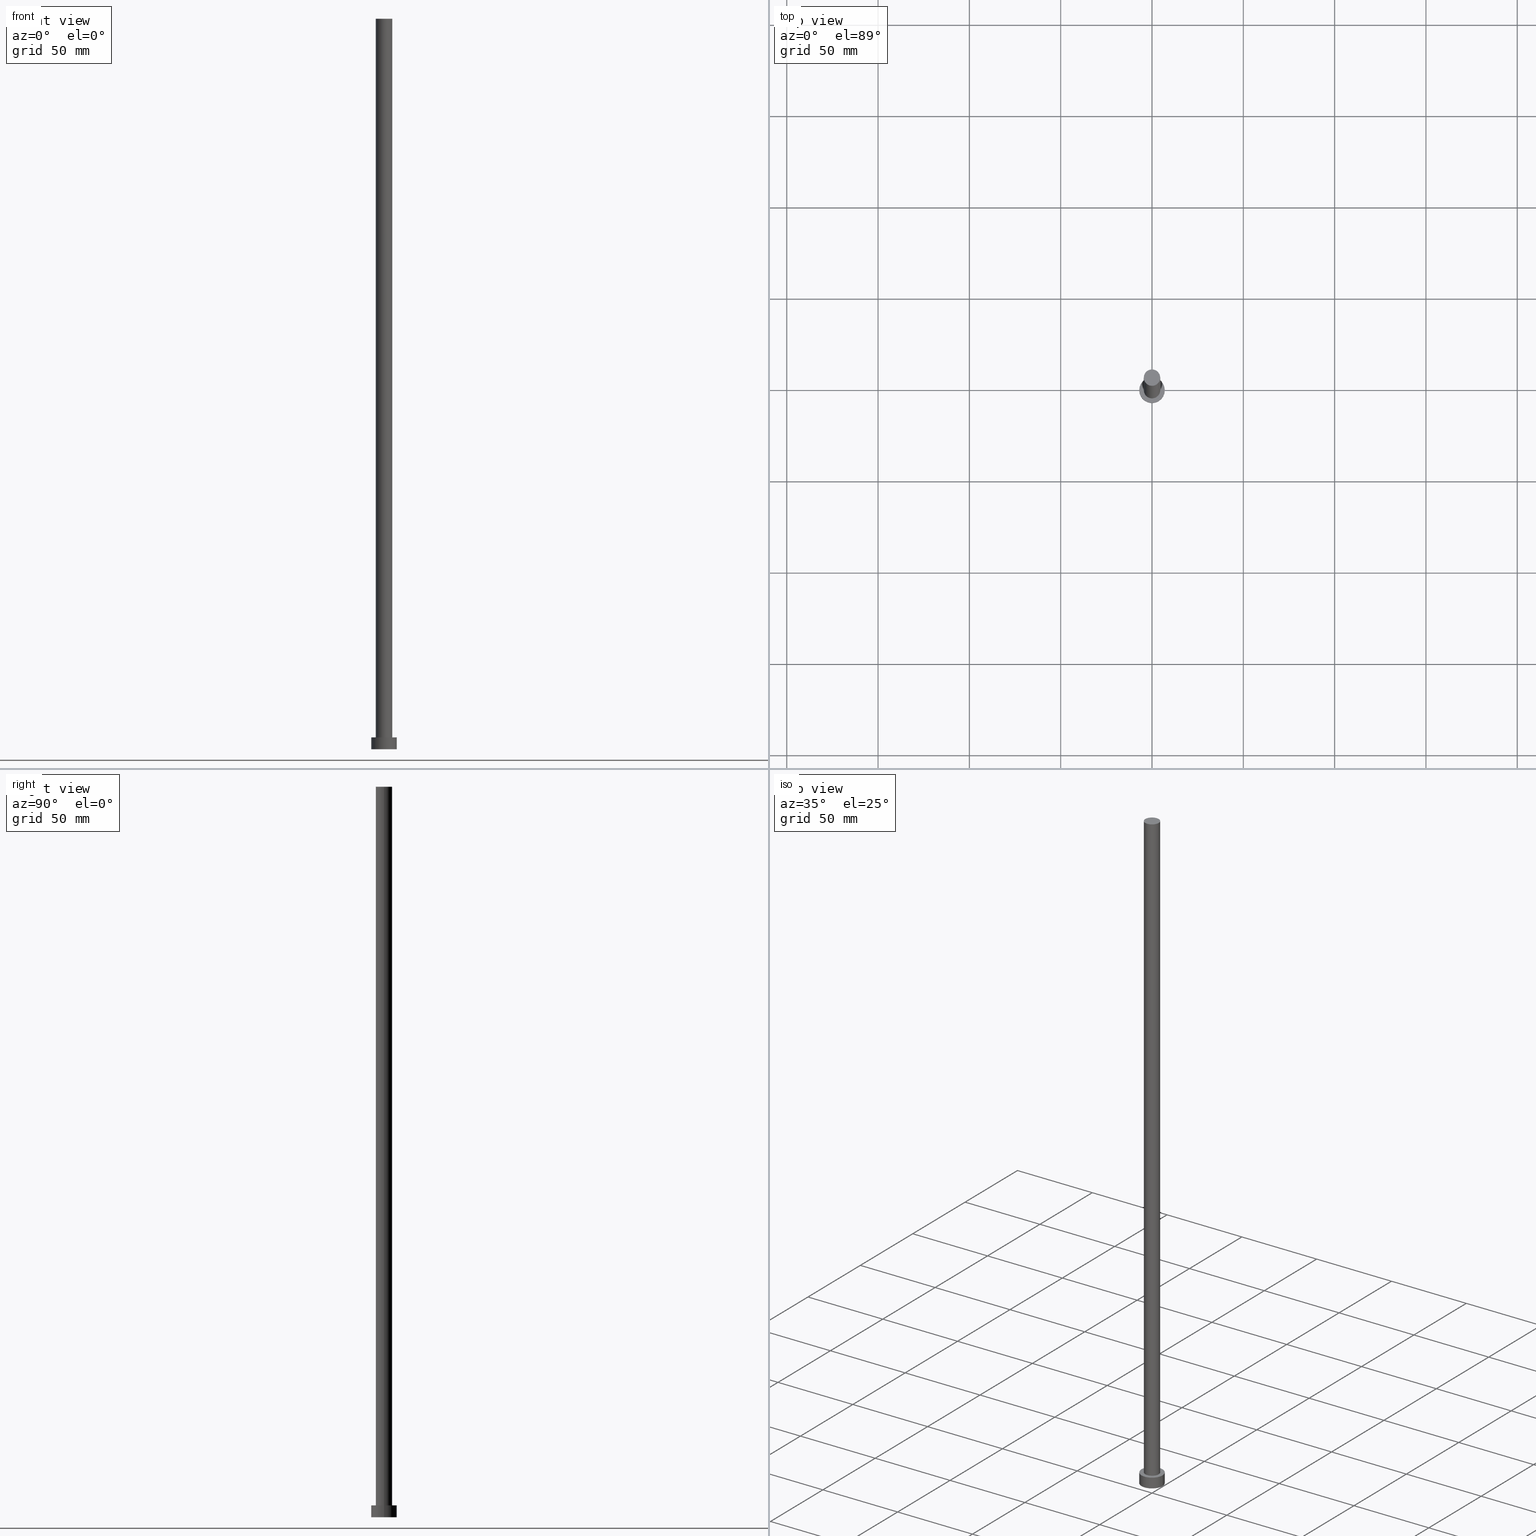
[diagram: canonical four-view strip — front | top / right | iso, engineering-drawing reading convention]
A machine part, canonical four-view strip (front | top / right | iso — engineering-drawing reading convention). The complete STEP part file that produces these views, byte-faithful:
ISO-10303-21;
HEADER;
FILE_DESCRIPTION (( 'STEP AP203' ),
    '1' );
FILE_NAME ('1547.STEP',
    '2023-02-13T13:45:24',
    ( '' ),
    ( '' ),
    'SwSTEP 2.0',
    'SolidWorks 2019',
    '' );
FILE_SCHEMA (( 'CONFIG_CONTROL_DESIGN' ));
ENDSEC;

DATA;
#1 = AXIS2_PLACEMENT_3D ( 'NONE', #96, #161, #177 ) ;
#2 = SECURITY_CLASSIFICATION_LEVEL ( 'unclassified' ) ;
#3 = LINE ( 'NONE', #108, #54 ) ;
#4 = FACE_OUTER_BOUND ( 'NONE', #106, .T. ) ;
#5 = SHAPE_DEFINITION_REPRESENTATION ( #249, #187 ) ;
#6 = CARTESIAN_POINT ( 'NONE',  ( -7.000000000000000000, 0.000000000000000000, 6.500000000000000000 ) ) ;
#7 = CARTESIAN_POINT ( 'NONE',  ( 0.000000000000000000, 0.000000000000000000, 6.500000000000000000 ) ) ;
#8 = AXIS2_PLACEMENT_3D ( 'NONE', #20, #75, #156 ) ;
#9 = PERSON_AND_ORGANIZATION_ROLE ( 'design_supplier' ) ;
#10 = EDGE_CURVE ( 'NONE', #111, #213, #14, .T. ) ;
#11 = DIRECTION ( 'NONE',  ( 0.000000000000000000, 0.000000000000000000, 1.000000000000000000 ) ) ;
#12 = EDGE_CURVE ( 'NONE', #253, #102, #3, .T. ) ;
#13 = ORIENTED_EDGE ( 'NONE', *, *, #186, .T. ) ;
#14 = CIRCLE ( 'NONE', #205, 7.000000000000000000 ) ;
#15 = CC_DESIGN_APPROVAL ( #219, ( #92 ) ) ;
#16 = ORIENTED_EDGE ( 'NONE', *, *, #12, .F. ) ;
#17 = ORIENTED_EDGE ( 'NONE', *, *, #194, .F. ) ;
#18 = EDGE_CURVE ( 'NONE', #213, #190, #228, .T. ) ;
#19 = FACE_OUTER_BOUND ( 'NONE', #55, .T. ) ;
#20 = CARTESIAN_POINT ( 'NONE',  ( 0.000000000000000000, 0.000000000000000000, 400.0000000000000000 ) ) ;
#21 = APPROVAL_DATE_TIME ( #110, #170 ) ;
#22 = LINE ( 'NONE', #60, #243 ) ;
#23 = PERSON_AND_ORGANIZATION ( #225, #144 ) ;
#24 = AXIS2_PLACEMENT_3D ( 'NONE', #173, #77, #211 ) ;
#25 = DIRECTION ( 'NONE',  ( 0.000000000000000000, 0.000000000000000000, 1.000000000000000000 ) ) ;
#26 = CC_DESIGN_PERSON_AND_ORGANIZATION_ASSIGNMENT ( #155, #9, ( #154 ) ) ;
#27 = DIRECTION ( 'NONE',  ( -1.000000000000000000, 0.000000000000000000, 0.000000000000000000 ) ) ;
#28 = CALENDAR_DATE ( 2023, 13, 2 ) ;
#29 = FACE_OUTER_BOUND ( 'NONE', #192, .T. ) ;
#30 = CIRCLE ( 'NONE', #209, 7.000000000000000000 ) ;
#31 = DIRECTION ( 'NONE',  ( 1.000000000000000000, 0.000000000000000000, 0.000000000000000000 ) ) ;
#32 = VECTOR ( 'NONE', #208, 1000.000000000000000 ) ;
#33 = VECTOR ( 'NONE', #79, 1000.000000000000000 ) ;
#34 = ORIENTED_EDGE ( 'NONE', *, *, #44, .T. ) ;
#35 = ADVANCED_FACE ( 'NONE', ( #19 ), #231, .T. ) ;
#36 = VERTEX_POINT ( 'NONE', #238 ) ;
#37 = CC_DESIGN_APPROVAL ( #226, ( #137 ) ) ;
#38 = COORDINATED_UNIVERSAL_TIME_OFFSET ( 1, 0, .AHEAD. ) ;
#39 = DIRECTION ( 'NONE',  ( 0.000000000000000000, 0.000000000000000000, 1.000000000000000000 ) ) ;
#40 = DIRECTION ( 'NONE',  ( -1.000000000000000000, 0.000000000000000000, 0.000000000000000000 ) ) ;
#41 = VERTEX_POINT ( 'NONE', #130 ) ;
#42 = DIRECTION ( 'NONE',  ( -0.000000000000000000, -0.000000000000000000, -1.000000000000000000 ) ) ;
#43 = DATE_AND_TIME ( #135, #251 ) ;
#44 = EDGE_CURVE ( 'NONE', #36, #102, #152, .T. ) ;
#45 = CALENDAR_DATE ( 2023, 13, 2 ) ;
#46 = PERSON_AND_ORGANIZATION ( #225, #144 ) ;
#47 = ADVANCED_FACE ( 'NONE', ( #93 ), #138, .F. ) ;
#48 = CARTESIAN_POINT ( 'NONE',  ( -4.500000000000000888, 0.000000000000000000, 400.0000000000000000 ) ) ;
#49 = APPROVAL_PERSON_ORGANIZATION ( #23, #170, #115 ) ;
#50 = CC_DESIGN_DATE_AND_TIME_ASSIGNMENT ( #43, #221, ( #92 ) ) ;
#51 = ORIENTED_EDGE ( 'NONE', *, *, #120, .T. ) ;
#52 = ORIENTED_EDGE ( 'NONE', *, *, #87, .F. ) ;
#53 = ORIENTED_EDGE ( 'NONE', *, *, #212, .T. ) ;
#54 = VECTOR ( 'NONE', #150, 1000.000000000000000 ) ;
#55 = EDGE_LOOP ( 'NONE', ( #85, #51 ) ) ;
#56 = AXIS2_PLACEMENT_3D ( 'NONE', #203, #83, #31 ) ;
#57 = CARTESIAN_POINT ( 'NONE',  ( 0.000000000000000000, 0.000000000000000000, 6.500000000000000000 ) ) ;
#58 = CARTESIAN_POINT ( 'NONE',  ( -4.500000000000000888, 0.000000000000000000, 6.500000000000000000 ) ) ;
#59 = PERSON_AND_ORGANIZATION_ROLE ( 'design_owner' ) ;
#60 = CARTESIAN_POINT ( 'NONE',  ( 4.500000000000000888, 5.510910596163089556E-16, 400.0000000000000000 ) ) ;
#61 = PERSON_AND_ORGANIZATION ( #225, #144 ) ;
#62 = CIRCLE ( 'NONE', #24, 4.500000000000000888 ) ;
#63 = AXIS2_PLACEMENT_3D ( 'NONE', #244, #11, #236 ) ;
#64 = CARTESIAN_POINT ( 'NONE',  ( 0.000000000000000000, 0.000000000000000000, 6.500000000000000000 ) ) ;
#65 = APPROVAL_STATUS ( 'not_yet_approved' ) ;
#66 = CLOSED_SHELL ( 'NONE', ( #142, #80, #252, #147, #47, #146, #35 ) ) ;
#67 = PRODUCT_RELATED_PRODUCT_CATEGORY ( 'detail', '', ( #163 ) ) ;
#68 = CARTESIAN_POINT ( 'NONE',  ( 0.000000000000000000, 0.000000000000000000, 6.500000000000000000 ) ) ;
#69 = ORIENTED_EDGE ( 'NONE', *, *, #194, .T. ) ;
#70 = ORIENTED_EDGE ( 'NONE', *, *, #44, .F. ) ;
#71 = ORIENTED_EDGE ( 'NONE', *, *, #120, .F. ) ;
#72 = LINE ( 'NONE', #6, #33 ) ;
#73 = PERSON_AND_ORGANIZATION ( #225, #144 ) ;
#74 = CC_DESIGN_APPROVAL ( #170, ( #154 ) ) ;
#75 = DIRECTION ( 'NONE',  ( -0.000000000000000000, -0.000000000000000000, -1.000000000000000000 ) ) ;
#76 = PERSON_AND_ORGANIZATION_ROLE ( 'classification_officer' ) ;
#77 = DIRECTION ( 'NONE',  ( 0.000000000000000000, 0.000000000000000000, 1.000000000000000000 ) ) ;
#78 = APPROVAL_ROLE ( '' ) ;
#79 = DIRECTION ( 'NONE',  ( -0.000000000000000000, -0.000000000000000000, -1.000000000000000000 ) ) ;
#80 = ADVANCED_FACE ( 'NONE', ( #29 ), #254, .T. ) ;
#81 = AXIS2_PLACEMENT_3D ( 'NONE', #220, #140, #240 ) ;
#82 = DIRECTION ( 'NONE',  ( 1.000000000000000000, 0.000000000000000000, -0.000000000000000000 ) ) ;
#83 = DIRECTION ( 'NONE',  ( 0.000000000000000000, 0.000000000000000000, 1.000000000000000000 ) ) ;
#84 = EDGE_LOOP ( 'NONE', ( #200, #227 ) ) ;
#85 = ORIENTED_EDGE ( 'NONE', *, *, #162, .T. ) ;
#86 = ORIENTED_EDGE ( 'NONE', *, *, #10, .F. ) ;
#87 = EDGE_CURVE ( 'NONE', #213, #111, #168, .T. ) ;
#88 = AXIS2_PLACEMENT_3D ( 'NONE', #7, #179, #82 ) ;
#89 = LOCAL_TIME ( 14, 45, 24.00000000000000000, #255 ) ;
#90 = PLANE ( 'NONE',  #88 ) ;
#91 = COORDINATED_UNIVERSAL_TIME_OFFSET ( 1, 0, .AHEAD. ) ;
#92 = PRODUCT_DEFINITION ( 'NEZN�M�', '', #154, #169 ) ;
#93 = FACE_OUTER_BOUND ( 'NONE', #84, .T. ) ;
#94 = AXIS2_PLACEMENT_3D ( 'NONE', #57, #158, #116 ) ;
#95 = ORIENTED_EDGE ( 'NONE', *, *, #136, .T. ) ;
#96 = CARTESIAN_POINT ( 'NONE',  ( 0.000000000000000000, 0.000000000000000000, 400.0000000000000000 ) ) ;
#97 = APPLICATION_PROTOCOL_DEFINITION ( 'international standard', 'config_control_design', 1994, #202 ) ;
#98 = CC_DESIGN_PERSON_AND_ORGANIZATION_ASSIGNMENT ( #197, #59, ( #163 ) ) ;
#99 = FACE_OUTER_BOUND ( 'NONE', #250, .T. ) ;
#100 = CYLINDRICAL_SURFACE ( 'NONE', #237, 4.500000000000000888 ) ;
#101 = CIRCLE ( 'NONE', #248, 4.500000000000000888 ) ;
#102 = VERTEX_POINT ( 'NONE', #58 ) ;
#103 = DIRECTION ( 'NONE',  ( 0.000000000000000000, 0.000000000000000000, 1.000000000000000000 ) ) ;
#104 = APPROVAL_PERSON_ORGANIZATION ( #178, #226, #232 ) ;
#105 = ORIENTED_EDGE ( 'NONE', *, *, #186, .F. ) ;
#106 = EDGE_LOOP ( 'NONE', ( #167, #125 ) ) ;
#107 = CC_DESIGN_PERSON_AND_ORGANIZATION_ASSIGNMENT ( #46, #76, ( #137 ) ) ;
#108 = CARTESIAN_POINT ( 'NONE',  ( -4.500000000000000888, 0.000000000000000000, 400.0000000000000000 ) ) ;
#109 = CARTESIAN_POINT ( 'NONE',  ( 0.000000000000000000, 0.000000000000000000, 6.500000000000000000 ) ) ;
#110 = DATE_AND_TIME ( #218, #188 ) ;
#111 = VERTEX_POINT ( 'NONE', #222 ) ;
#112 = FACE_OUTER_BOUND ( 'NONE', #151, .T. ) ;
#113 = DATE_AND_TIME ( #199, #166 ) ;
#114 = DIRECTION ( 'NONE',  ( 1.000000000000000000, 0.000000000000000000, 0.000000000000000000 ) ) ;
#115 = APPROVAL_ROLE ( '' ) ;
#116 = DIRECTION ( 'NONE',  ( 1.000000000000000000, 0.000000000000000000, 0.000000000000000000 ) ) ;
#117 = DATE_AND_TIME ( #45, #224 ) ;
#118 = DIRECTION ( 'NONE',  ( 0.000000000000000000, 0.000000000000000000, 1.000000000000000000 ) ) ;
#119 = DIRECTION ( 'NONE',  ( -1.000000000000000000, 0.000000000000000000, 0.000000000000000000 ) ) ;
#120 = EDGE_CURVE ( 'NONE', #41, #253, #62, .T. ) ;
#121 = ORIENTED_EDGE ( 'NONE', *, *, #18, .F. ) ;
#122 =( NAMED_UNIT ( * ) SI_UNIT ( $, .STERADIAN. ) SOLID_ANGLE_UNIT ( ) );
#123 = MANIFOLD_SOLID_BREP ( 'P�idat vysunut�m3', #66 ) ;
#124 = CC_DESIGN_PERSON_AND_ORGANIZATION_ASSIGNMENT ( #175, #133, ( #154 ) ) ;
#125 = ORIENTED_EDGE ( 'NONE', *, *, #87, .T. ) ;
#126 = CARTESIAN_POINT ( 'NONE',  ( 7.000000000000000000, 8.572527594031471218E-16, 6.500000000000000000 ) ) ;
#127 = CIRCLE ( 'NONE', #56, 7.000000000000000000 ) ;
#128 = COORDINATED_UNIVERSAL_TIME_OFFSET ( 1, 0, .AHEAD. ) ;
#129 = ORIENTED_EDGE ( 'NONE', *, *, #162, .F. ) ;
#130 = CARTESIAN_POINT ( 'NONE',  ( 4.500000000000000888, 5.510910596163089556E-16, 400.0000000000000000 ) ) ;
#131 = APPROVAL_STATUS ( 'not_yet_approved' ) ;
#132 = DIRECTION ( 'NONE',  ( 1.000000000000000000, 0.000000000000000000, 0.000000000000000000 ) ) ;
#133 = PERSON_AND_ORGANIZATION_ROLE ( 'creator' ) ;
#134 = CARTESIAN_POINT ( 'NONE',  ( 0.000000000000000000, 0.000000000000000000, 0.000000000000000000 ) ) ;
#135 = CALENDAR_DATE ( 2023, 13, 2 ) ;
#136 = EDGE_CURVE ( 'NONE', #41, #36, #22, .T. ) ;
#137 = SECURITY_CLASSIFICATION ( '', '', #2 ) ;
#138 = PLANE ( 'NONE',  #81 ) ;
#139 = PERSON_AND_ORGANIZATION_ROLE ( 'creator' ) ;
#140 = DIRECTION ( 'NONE',  ( 0.000000000000000000, 0.000000000000000000, 1.000000000000000000 ) ) ;
#141 =( LENGTH_UNIT ( ) NAMED_UNIT ( * ) SI_UNIT ( .MILLI., .METRE. ) );
#142 = ADVANCED_FACE ( 'NONE', ( #99 ), #100, .T. ) ;
#143 = DIRECTION ( 'NONE',  ( 1.000000000000000000, 0.000000000000000000, 0.000000000000000000 ) ) ;
#144 = ORGANIZATION ( 'NEUR�EN�', 'NEUR�EN�', '' ) ;
#145 = CARTESIAN_POINT ( 'NONE',  ( -7.000000000000000000, 0.000000000000000000, 0.000000000000000000 ) ) ;
#146 = ADVANCED_FACE ( 'NONE', ( #112 ), #193, .T. ) ;
#147 = ADVANCED_FACE ( 'NONE', ( #234, #4 ), #90, .T. ) ;
#148 = AXIS2_PLACEMENT_3D ( 'NONE', #172, #25, #198 ) ;
#149 = ORIENTED_EDGE ( 'NONE', *, *, #164, .T. ) ;
#150 = DIRECTION ( 'NONE',  ( -0.000000000000000000, -0.000000000000000000, -1.000000000000000000 ) ) ;
#151 = EDGE_LOOP ( 'NONE', ( #233, #129, #229, #69 ) ) ;
#152 = CIRCLE ( 'NONE', #215, 4.500000000000000888 ) ;
#153 = CARTESIAN_POINT ( 'NONE',  ( 7.000000000000000000, 8.572527594031471218E-16, 0.000000000000000000 ) ) ;
#154 = PRODUCT_DEFINITION_FORMATION_WITH_SPECIFIED_SOURCE ( 'LIBOVOLN�', '', #163, .NOT_KNOWN. ) ;
#155 = PERSON_AND_ORGANIZATION ( #225, #144 ) ;
#156 = DIRECTION ( 'NONE',  ( -1.000000000000000000, 0.000000000000000000, 0.000000000000000000 ) ) ;
#157 = COORDINATED_UNIVERSAL_TIME_OFFSET ( 1, 0, .AHEAD. ) ;
#158 = DIRECTION ( 'NONE',  ( 0.000000000000000000, 0.000000000000000000, 1.000000000000000000 ) ) ;
#159 = DATE_AND_TIME ( #28, #89 ) ;
#160 = CARTESIAN_POINT ( 'NONE',  ( 0.000000000000000000, 0.000000000000000000, 400.0000000000000000 ) ) ;
#161 = DIRECTION ( 'NONE',  ( 0.000000000000000000, 0.000000000000000000, 1.000000000000000000 ) ) ;
#162 = EDGE_CURVE ( 'NONE', #253, #41, #245, .T. ) ;
#163 = PRODUCT ( '1547', '1547', '', ( #239 ) ) ;
#164 = EDGE_CURVE ( 'NONE', #190, #207, #30, .T. ) ;
#165 = CYLINDRICAL_SURFACE ( 'NONE', #230, 7.000000000000000000 ) ;
#166 = LOCAL_TIME ( 14, 45, 24.00000000000000000, #91 ) ;
#167 = ORIENTED_EDGE ( 'NONE', *, *, #10, .T. ) ;
#168 = CIRCLE ( 'NONE', #94, 7.000000000000000000 ) ;
#169 = DESIGN_CONTEXT ( 'detailed design', #202, 'design' ) ;
#170 = APPROVAL ( #131, 'NEUR�EN�' ) ;
#171 = DIRECTION ( 'NONE',  ( 1.000000000000000000, 0.000000000000000000, 0.000000000000000000 ) ) ;
#172 = CARTESIAN_POINT ( 'NONE',  ( 0.000000000000000000, 0.000000000000000000, 400.0000000000000000 ) ) ;
#173 = CARTESIAN_POINT ( 'NONE',  ( 0.000000000000000000, 0.000000000000000000, 400.0000000000000000 ) ) ;
#174 =( GEOMETRIC_REPRESENTATION_CONTEXT ( 3 ) GLOBAL_UNCERTAINTY_ASSIGNED_CONTEXT ( ( #206 ) ) GLOBAL_UNIT_ASSIGNED_CONTEXT ( ( #141, #241, #122 ) ) REPRESENTATION_CONTEXT ( 'NONE', 'WORKASPACE' ) );
#175 = PERSON_AND_ORGANIZATION ( #225, #144 ) ;
#176 = EDGE_LOOP ( 'NONE', ( #121, #86, #13, #53 ) ) ;
#177 = DIRECTION ( 'NONE',  ( 1.000000000000000000, 0.000000000000000000, 0.000000000000000000 ) ) ;
#178 = PERSON_AND_ORGANIZATION ( #225, #144 ) ;
#179 = DIRECTION ( 'NONE',  ( 0.000000000000000000, 0.000000000000000000, 1.000000000000000000 ) ) ;
#180 = APPROVAL_DATE_TIME ( #159, #219 ) ;
#181 = DIRECTION ( 'NONE',  ( -0.000000000000000000, -0.000000000000000000, -1.000000000000000000 ) ) ;
#182 = AXIS2_PLACEMENT_3D ( 'NONE', #109, #235, #27 ) ;
#183 = CC_DESIGN_SECURITY_CLASSIFICATION ( #137, ( #154 ) ) ;
#184 = APPLICATION_PROTOCOL_DEFINITION ( 'international standard', 'config_control_design', 1994, #195 ) ;
#185 = ORIENTED_EDGE ( 'NONE', *, *, #18, .T. ) ;
#186 = EDGE_CURVE ( 'NONE', #111, #207, #72, .T. ) ;
#187 = ADVANCED_BREP_SHAPE_REPRESENTATION ( '1547', ( #123, #63 ), #174 ) ;
#188 = LOCAL_TIME ( 14, 45, 24.00000000000000000, #128 ) ;
#189 = EDGE_LOOP ( 'NONE', ( #17, #70 ) ) ;
#190 = VERTEX_POINT ( 'NONE', #153 ) ;
#191 = CARTESIAN_POINT ( 'NONE',  ( 0.000000000000000000, 0.000000000000000000, 6.500000000000000000 ) ) ;
#192 = EDGE_LOOP ( 'NONE', ( #52, #185, #149, #105 ) ) ;
#193 = CYLINDRICAL_SURFACE ( 'NONE', #8, 4.500000000000000888 ) ;
#194 = EDGE_CURVE ( 'NONE', #102, #36, #101, .T. ) ;
#195 = APPLICATION_CONTEXT ( 'configuration controlled 3d designs of mechanical parts and assemblies' ) ;
#196 = APPROVAL_DATE_TIME ( #113, #226 ) ;
#197 = PERSON_AND_ORGANIZATION ( #225, #144 ) ;
#198 = DIRECTION ( 'NONE',  ( 1.000000000000000000, 0.000000000000000000, -0.000000000000000000 ) ) ;
#199 = CALENDAR_DATE ( 2023, 13, 2 ) ;
#200 = ORIENTED_EDGE ( 'NONE', *, *, #212, .F. ) ;
#201 = CARTESIAN_POINT ( 'NONE',  ( 7.000000000000000000, 8.572527594031471218E-16, 6.500000000000000000 ) ) ;
#202 = APPLICATION_CONTEXT ( 'configuration controlled 3d designs of mechanical parts and assemblies' ) ;
#203 = CARTESIAN_POINT ( 'NONE',  ( 0.000000000000000000, 0.000000000000000000, 0.000000000000000000 ) ) ;
#204 = CC_DESIGN_DATE_AND_TIME_ASSIGNMENT ( #117, #214, ( #137 ) ) ;
#205 = AXIS2_PLACEMENT_3D ( 'NONE', #191, #39, #171 ) ;
#206 = UNCERTAINTY_MEASURE_WITH_UNIT (LENGTH_MEASURE( 1.000000000000000082E-05 ), #141, 'distance_accuracy_value', 'NONE');
#207 = VERTEX_POINT ( 'NONE', #145 ) ;
#208 = DIRECTION ( 'NONE',  ( -0.000000000000000000, -0.000000000000000000, -1.000000000000000000 ) ) ;
#209 = AXIS2_PLACEMENT_3D ( 'NONE', #134, #216, #114 ) ;
#210 = APPROVAL_STATUS ( 'not_yet_approved' ) ;
#211 = DIRECTION ( 'NONE',  ( 1.000000000000000000, 0.000000000000000000, 0.000000000000000000 ) ) ;
#212 = EDGE_CURVE ( 'NONE', #207, #190, #127, .T. ) ;
#213 = VERTEX_POINT ( 'NONE', #201 ) ;
#214 = DATE_TIME_ROLE ( 'classification_date' ) ;
#215 = AXIS2_PLACEMENT_3D ( 'NONE', #64, #118, #132 ) ;
#216 = DIRECTION ( 'NONE',  ( 0.000000000000000000, 0.000000000000000000, 1.000000000000000000 ) ) ;
#217 = APPROVAL_PERSON_ORGANIZATION ( #73, #219, #78 ) ;
#218 = CALENDAR_DATE ( 2023, 13, 2 ) ;
#219 = APPROVAL ( #65, 'NEUR�EN�' ) ;
#220 = CARTESIAN_POINT ( 'NONE',  ( 0.000000000000000000, 0.000000000000000000, 0.000000000000000000 ) ) ;
#221 = DATE_TIME_ROLE ( 'creation_date' ) ;
#222 = CARTESIAN_POINT ( 'NONE',  ( -7.000000000000000000, 0.000000000000000000, 6.500000000000000000 ) ) ;
#223 = CARTESIAN_POINT ( 'NONE',  ( 0.000000000000000000, 0.000000000000000000, 6.500000000000000000 ) ) ;
#224 = LOCAL_TIME ( 14, 45, 24.00000000000000000, #157 ) ;
#225 = PERSON ( 'NEUR�EN�', 'NEUR�EN�', 'NEUR�EN�', ('NEUR�EN�'), ('NEUR�EN�'), ('NEUR�EN�') ) ;
#226 = APPROVAL ( #210, 'NEUR�EN�' ) ;
#227 = ORIENTED_EDGE ( 'NONE', *, *, #164, .F. ) ;
#228 = LINE ( 'NONE', #126, #32 ) ;
#229 = ORIENTED_EDGE ( 'NONE', *, *, #12, .T. ) ;
#230 = AXIS2_PLACEMENT_3D ( 'NONE', #68, #242, #119 ) ;
#231 = PLANE ( 'NONE',  #148 ) ;
#232 = APPROVAL_ROLE ( '' ) ;
#233 = ORIENTED_EDGE ( 'NONE', *, *, #136, .F. ) ;
#234 = FACE_BOUND ( 'NONE', #189, .T. ) ;
#235 = DIRECTION ( 'NONE',  ( -0.000000000000000000, -0.000000000000000000, -1.000000000000000000 ) ) ;
#236 = DIRECTION ( 'NONE',  ( 1.000000000000000000, 0.000000000000000000, 0.000000000000000000 ) ) ;
#237 = AXIS2_PLACEMENT_3D ( 'NONE', #160, #181, #40 ) ;
#238 = CARTESIAN_POINT ( 'NONE',  ( 4.500000000000000888, 5.510910596163089556E-16, 6.500000000000000000 ) ) ;
#239 = MECHANICAL_CONTEXT ( 'NONE', #195, 'mechanical' ) ;
#240 = DIRECTION ( 'NONE',  ( 1.000000000000000000, 0.000000000000000000, -0.000000000000000000 ) ) ;
#241 =( NAMED_UNIT ( * ) PLANE_ANGLE_UNIT ( ) SI_UNIT ( $, .RADIAN. ) );
#242 = DIRECTION ( 'NONE',  ( -0.000000000000000000, -0.000000000000000000, -1.000000000000000000 ) ) ;
#243 = VECTOR ( 'NONE', #42, 1000.000000000000000 ) ;
#244 = CARTESIAN_POINT ( 'NONE',  ( 0.000000000000000000, 0.000000000000000000, 0.000000000000000000 ) ) ;
#245 = CIRCLE ( 'NONE', #1, 4.500000000000000888 ) ;
#246 = FACE_OUTER_BOUND ( 'NONE', #176, .T. ) ;
#247 = CC_DESIGN_PERSON_AND_ORGANIZATION_ASSIGNMENT ( #61, #139, ( #92 ) ) ;
#248 = AXIS2_PLACEMENT_3D ( 'NONE', #223, #103, #143 ) ;
#249 = PRODUCT_DEFINITION_SHAPE ( 'NONE', 'NONE',  #92 ) ;
#250 = EDGE_LOOP ( 'NONE', ( #71, #95, #34, #16 ) ) ;
#251 = LOCAL_TIME ( 14, 45, 24.00000000000000000, #38 ) ;
#252 = ADVANCED_FACE ( 'NONE', ( #246 ), #165, .T. ) ;
#253 = VERTEX_POINT ( 'NONE', #48 ) ;
#254 = CYLINDRICAL_SURFACE ( 'NONE', #182, 7.000000000000000000 ) ;
#255 = COORDINATED_UNIVERSAL_TIME_OFFSET ( 1, 0, .AHEAD. ) ;
ENDSEC;
END-ISO-10303-21;
